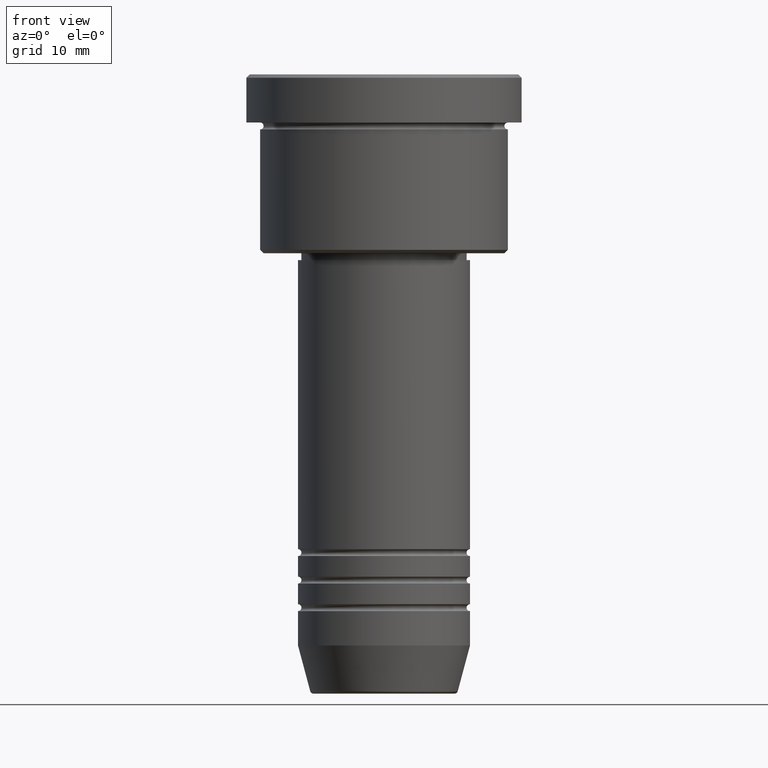
[diagram: clean part render]
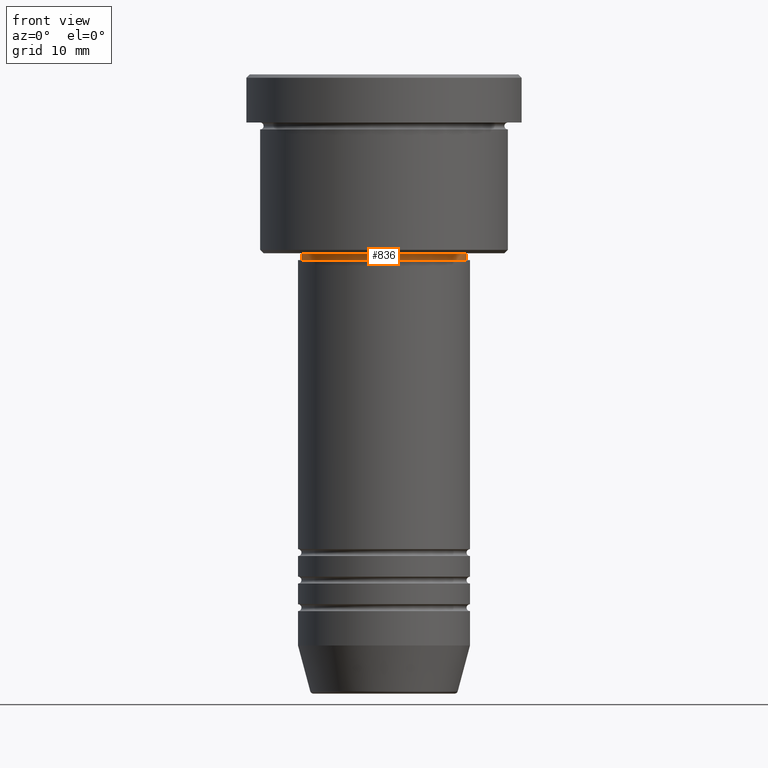
[diagram: same view with one face highlighted and labeled with its STEP entity id]
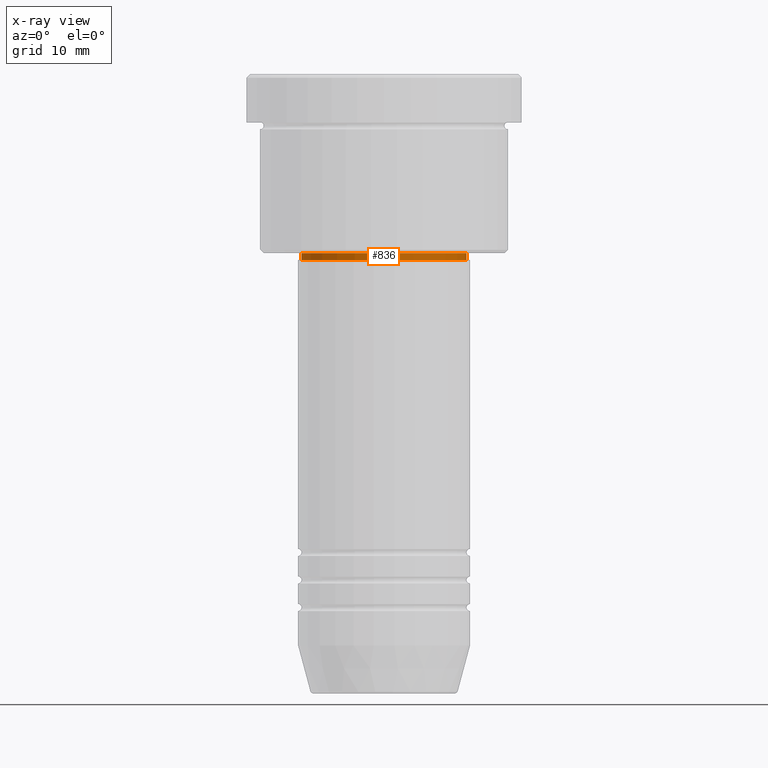
[diagram: x-ray of the same camera — body ghosted, the highlighted face saturated]
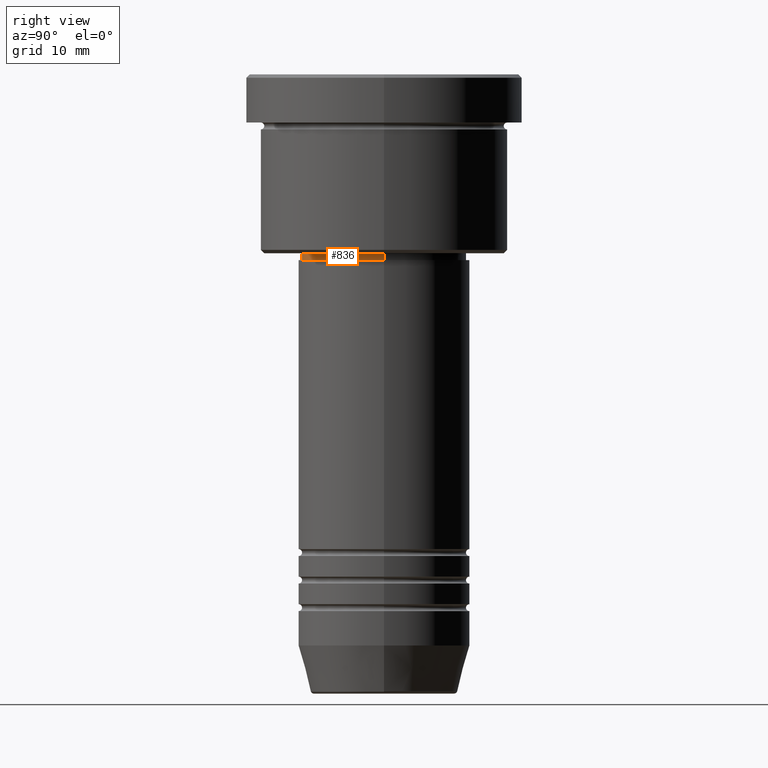
[diagram: same view with one face highlighted and labeled with its STEP entity id]
A machine part, front view. The second image highlights one B-rep face of the part: STEP entity #836.
The next image is the same camera in x-ray: the body ghosted, the highlighted face saturated — about 0% of this face is hidden behind the body in this view.
A second angle (right view) of the same face is appended — the face is thin or edge-on in the first view.
In plain terms, the highlighted cylindrical surface (partial cylindrical patch) has radius 12 mm, axis along (-0, -0, 1).
Its self-contained STEP definition (entity closure, byte-faithful):
#35 = CARTESIAN_POINT ( 'NONE',  ( 0.000000000000000000, 0.000000000000000000, 0.000000000000000000 ) ) ;
#40 = DIRECTION ( 'NONE',  ( -0.000000000000000000, -0.000000000000000000, 1.000000000000000000 ) ) ;
#54 = FACE_OUTER_BOUND ( 'NONE', #432, .T. ) ;
#183 = VECTOR ( 'NONE', #460, 1000.000000000000000 ) ;
#253 = CARTESIAN_POINT ( 'NONE',  ( 12.00000000000000000, 0.000000000000000000, -27.00000000000000000 ) ) ;
#293 = CARTESIAN_POINT ( 'NONE',  ( 12.00000000000000000, 0.000000000000000000, -25.99999999999999645 ) ) ;
#365 = CARTESIAN_POINT ( 'NONE',  ( -12.00000000000000000, 1.469576158976823947E-15, -27.00000000000000000 ) ) ;
#432 = EDGE_LOOP ( 'NONE', ( #612, #695, #832, #986 ) ) ;
#444 = CARTESIAN_POINT ( 'NONE',  ( -12.00000000000000000, 1.469576158976823947E-15, 0.000000000000000000 ) ) ;
#448 = CIRCLE ( 'NONE', #788, 12.00000000000000000 ) ;
#460 = DIRECTION ( 'NONE',  ( -0.000000000000000000, -0.000000000000000000, 1.000000000000000000 ) ) ;
#508 = CIRCLE ( 'NONE', #656, 12.00000000000000000 ) ;
#515 = DIRECTION ( 'NONE',  ( -0.000000000000000000, -0.000000000000000000, 1.000000000000000000 ) ) ;
#528 = DIRECTION ( 'NONE',  ( 1.000000000000000000, 0.000000000000000000, 0.000000000000000000 ) ) ;
#531 = VERTEX_POINT ( 'NONE', #702 ) ;
#604 = EDGE_CURVE ( 'NONE', #608, #531, #1160, .T. ) ;
#608 = VERTEX_POINT ( 'NONE', #365 ) ;
#612 = ORIENTED_EDGE ( 'NONE', *, *, #604, .F. ) ;
#656 = AXIS2_PLACEMENT_3D ( 'NONE', #706, #718, #528 ) ;
#673 = DIRECTION ( 'NONE',  ( 1.000000000000000000, 0.000000000000000000, 0.000000000000000000 ) ) ;
#695 = ORIENTED_EDGE ( 'NONE', *, *, #966, .T. ) ;
#702 = CARTESIAN_POINT ( 'NONE',  ( -12.00000000000000000, 1.469576158976823947E-15, -25.99999999999999645 ) ) ;
#706 = CARTESIAN_POINT ( 'NONE',  ( 0.000000000000000000, 0.000000000000000000, -25.99999999999999645 ) ) ;
#718 = DIRECTION ( 'NONE',  ( -0.000000000000000000, -0.000000000000000000, 1.000000000000000000 ) ) ;
#732 = VECTOR ( 'NONE', #515, 1000.000000000000000 ) ;
#768 = DIRECTION ( 'NONE',  ( -0.000000000000000000, -0.000000000000000000, 1.000000000000000000 ) ) ;
#788 = AXIS2_PLACEMENT_3D ( 'NONE', #856, #40, #809 ) ;
#809 = DIRECTION ( 'NONE',  ( 1.000000000000000000, 0.000000000000000000, 0.000000000000000000 ) ) ;
#832 = ORIENTED_EDGE ( 'NONE', *, *, #922, .T. ) ;
#836 = ADVANCED_FACE ( 'NONE', ( #54 ), #1040, .T. ) ;
#852 = CARTESIAN_POINT ( 'NONE',  ( 12.00000000000000000, 0.000000000000000000, 0.000000000000000000 ) ) ;
#856 = CARTESIAN_POINT ( 'NONE',  ( 0.000000000000000000, 0.000000000000000000, -27.00000000000000000 ) ) ;
#922 = EDGE_CURVE ( 'NONE', #1076, #1179, #1034, .T. ) ;
#966 = EDGE_CURVE ( 'NONE', #608, #1076, #448, .T. ) ;
#986 = ORIENTED_EDGE ( 'NONE', *, *, #1069, .F. ) ;
#1034 = LINE ( 'NONE', #852, #732 ) ;
#1040 = CYLINDRICAL_SURFACE ( 'NONE', #1166, 12.00000000000000000 ) ;
#1069 = EDGE_CURVE ( 'NONE', #531, #1179, #508, .T. ) ;
#1076 = VERTEX_POINT ( 'NONE', #253 ) ;
#1160 = LINE ( 'NONE', #444, #183 ) ;
#1166 = AXIS2_PLACEMENT_3D ( 'NONE', #35, #768, #673 ) ;
#1179 = VERTEX_POINT ( 'NONE', #293 ) ;